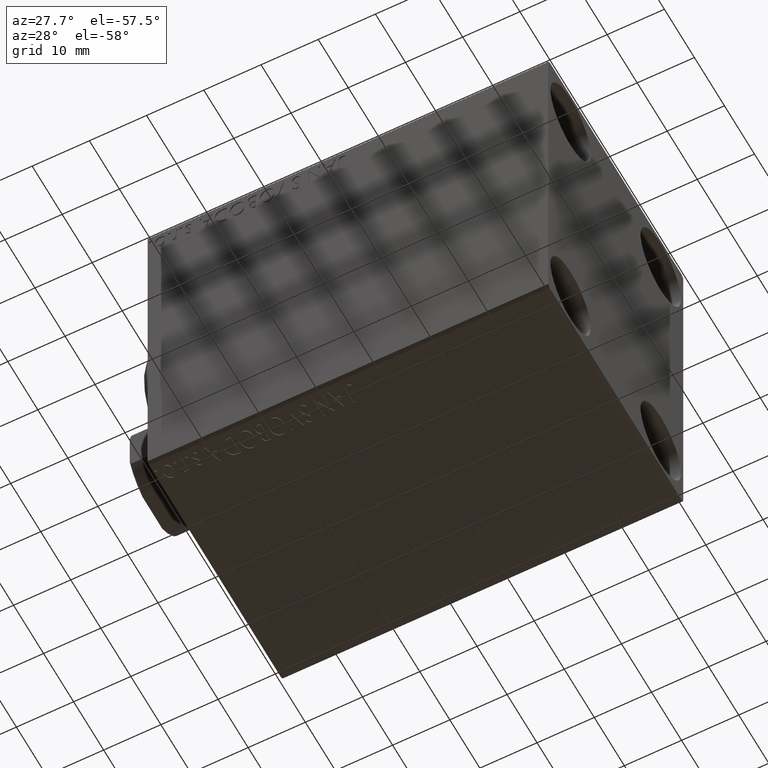
[diagram: clean part render]
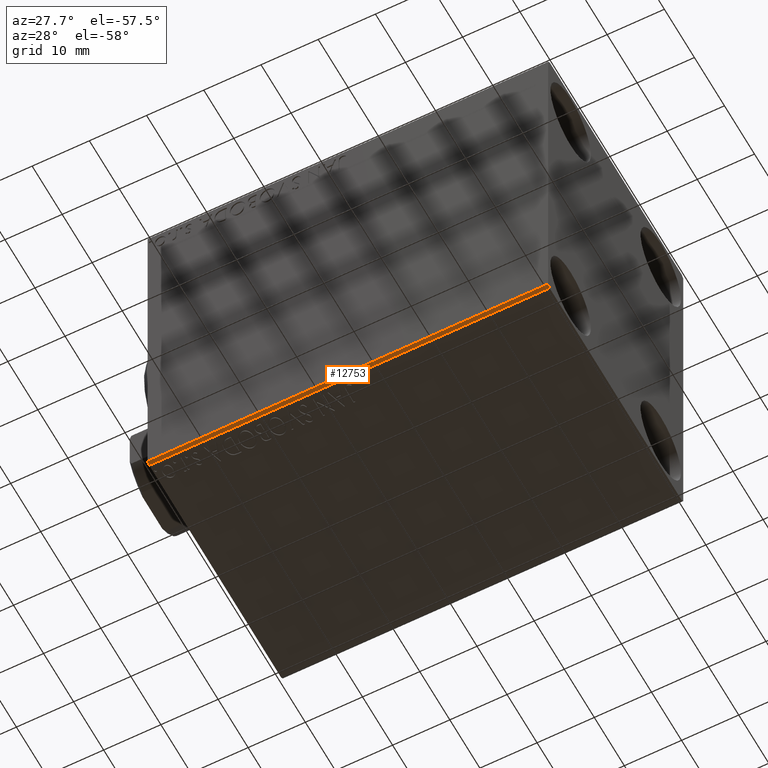
[diagram: same view with one face highlighted and labeled with its STEP entity id]
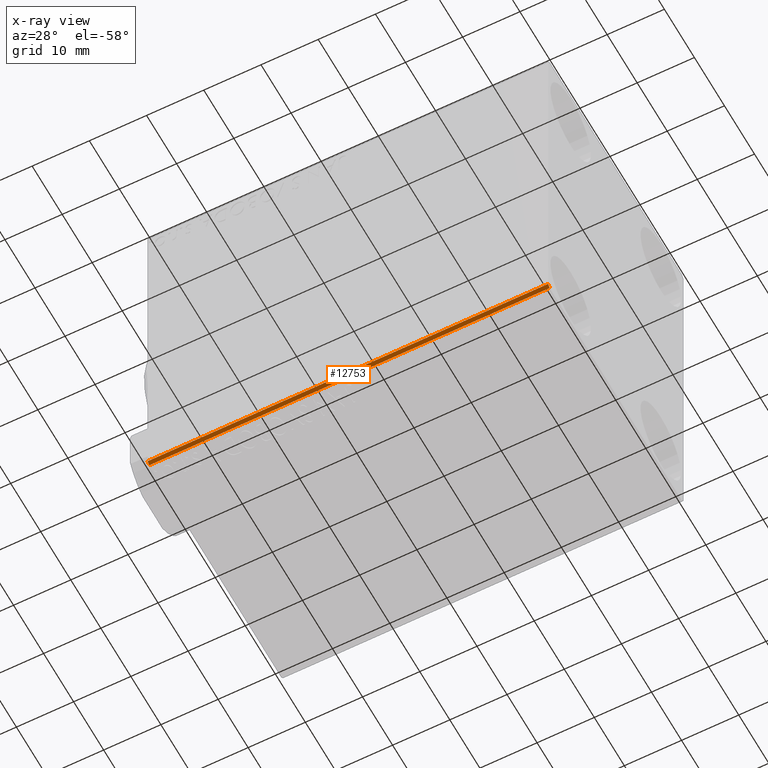
[diagram: x-ray of the same camera — body ghosted, the highlighted face saturated]
A machine part, auxiliary view. The second image highlights one B-rep face of the part: STEP entity #12753.
The next image is the same camera in x-ray: the body ghosted, the highlighted face saturated — about 0% of this face is hidden behind the body in this view.
In plain terms, the highlighted planar face has unit normal (0, 0.7071, 0.7071).
Its self-contained STEP definition (entity closure, byte-faithful):
#689 = VERTEX_POINT ( 'NONE', #39450 ) ;
#987 = VERTEX_POINT ( 'NONE', #36673 ) ;
#1147 = LINE ( 'NONE', #38505, #39918 ) ;
#1359 = CARTESIAN_POINT ( 'NONE',  ( 0.000000000000000000, -22.00000000000002132, -32.50000000000000711 ) ) ;
#2229 = EDGE_CURVE ( 'NONE', #987, #7055, #1147, .T. ) ;
#4266 = DIRECTION ( 'NONE',  ( -1.000000000000000000, -0.000000000000000000, 0.000000000000000000 ) ) ;
#4581 = VECTOR ( 'NONE', #38289, 1000.000000000000000 ) ;
#4700 = DIRECTION ( 'NONE',  ( -0.000000000000000000, 0.7071067811865378028, -0.7071067811865573427 ) ) ;
#7055 = VERTEX_POINT ( 'NONE', #36261 ) ;
#9702 = EDGE_CURVE ( 'NONE', #689, #987, #27443, .T. ) ;
#10054 = DIRECTION ( 'NONE',  ( 0.000000000000000000, 0.7071067811865573427, 0.7071067811865378028 ) ) ;
#10513 = CARTESIAN_POINT ( 'NONE',  ( 70.00000000000000000, -22.50000000000000711, -32.00000000000000711 ) ) ;
#12453 = CARTESIAN_POINT ( 'NONE',  ( 70.00000000000000000, -22.00000000000002132, -32.50000000000000711 ) ) ;
#12753 = ADVANCED_FACE ( 'NONE', ( #17616 ), #43877, .F. ) ;
#12842 = ORIENTED_EDGE ( 'NONE', *, *, #9702, .F. ) ;
#12950 = EDGE_CURVE ( 'NONE', #33977, #689, #28285, .T. ) ;
#16444 = LINE ( 'NONE', #12453, #17202 ) ;
#16952 = CARTESIAN_POINT ( 'NONE',  ( 70.00000000000000000, -22.00000000000002132, -32.50000000000000711 ) ) ;
#17202 = VECTOR ( 'NONE', #40268, 1000.000000000000000 ) ;
#17616 = FACE_OUTER_BOUND ( 'NONE', #37587, .T. ) ;
#18975 = ORIENTED_EDGE ( 'NONE', *, *, #2229, .F. ) ;
#21825 = ORIENTED_EDGE ( 'NONE', *, *, #24896, .F. ) ;
#24090 = DIRECTION ( 'NONE',  ( 1.000000000000000000, 0.000000000000000000, 0.000000000000000000 ) ) ;
#24896 = EDGE_CURVE ( 'NONE', #7055, #33977, #16444, .T. ) ;
#25187 = VECTOR ( 'NONE', #24090, 1000.000000000000000 ) ;
#27443 = LINE ( 'NONE', #10513, #25187 ) ;
#28285 = LINE ( 'NONE', #1359, #4581 ) ;
#29313 = CARTESIAN_POINT ( 'NONE',  ( 0.000000000000000000, -22.00000000000002132, -32.50000000000000711 ) ) ;
#29400 = AXIS2_PLACEMENT_3D ( 'NONE', #16952, #10054, #4266 ) ;
#33977 = VERTEX_POINT ( 'NONE', #29313 ) ;
#36261 = CARTESIAN_POINT ( 'NONE',  ( 70.00000000000000000, -22.00000000000002132, -32.50000000000000711 ) ) ;
#36673 = CARTESIAN_POINT ( 'NONE',  ( 70.00000000000000000, -22.50000000000000711, -32.00000000000000711 ) ) ;
#37587 = EDGE_LOOP ( 'NONE', ( #18975, #12842, #38342, #21825 ) ) ;
#38289 = DIRECTION ( 'NONE',  ( -0.000000000000000000, -0.7071067811865378028, 0.7071067811865573427 ) ) ;
#38342 = ORIENTED_EDGE ( 'NONE', *, *, #12950, .F. ) ;
#38505 = CARTESIAN_POINT ( 'NONE',  ( 70.00000000000000000, -27.25000000000032330, -27.24999999999957012 ) ) ;
#39450 = CARTESIAN_POINT ( 'NONE',  ( 0.000000000000000000, -22.50000000000000711, -32.00000000000000711 ) ) ;
#39918 = VECTOR ( 'NONE', #4700, 1000.000000000000000 ) ;
#40268 = DIRECTION ( 'NONE',  ( -1.000000000000000000, 0.000000000000000000, 0.000000000000000000 ) ) ;
#43877 = PLANE ( 'NONE',  #29400 ) ;